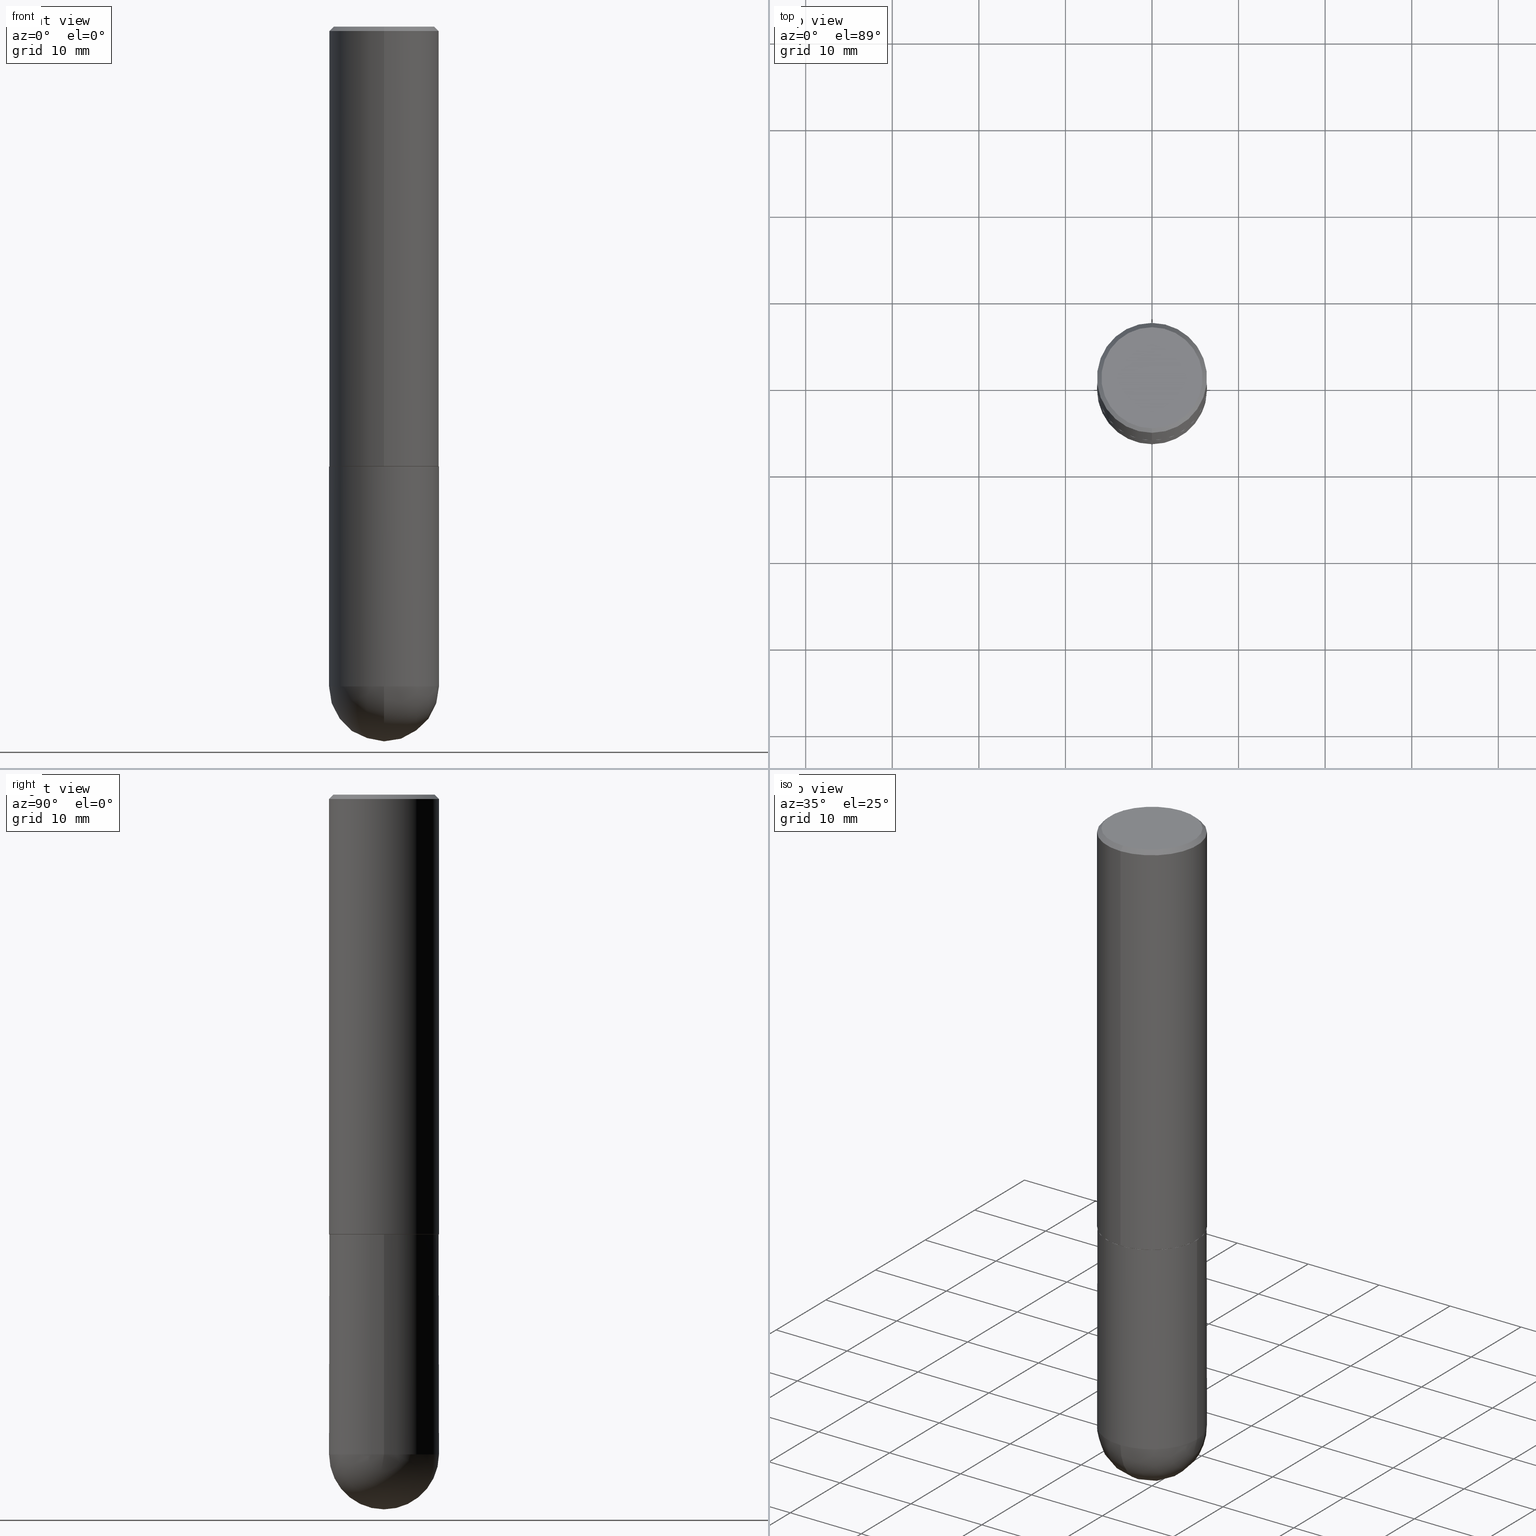
[diagram: canonical four-view strip — front | top / right | iso, engineering-drawing reading convention]
A machine part, canonical four-view strip (front | top / right | iso — engineering-drawing reading convention). The complete STEP part file that produces these views, byte-faithful:
ISO-10303-21;
HEADER;
FILE_DESCRIPTION (( 'STEP AP203' ),
    '1' );
FILE_NAME ('34674.STEP',
    '2024-02-21T18:18:47',
    ( '' ),
    ( '' ),
    'SwSTEP 2.0',
    'SolidWorks 2023',
    '' );
FILE_SCHEMA (( 'CONFIG_CONTROL_DESIGN' ));
ENDSEC;

DATA;
#1 = CARTESIAN_POINT ( 'NONE',  ( 7.005286640641522422E-29, -1.094862638466948349E-14, -2.999999999999999556 ) ) ;
#2 = AXIS2_PLACEMENT_3D ( 'NONE', #1, #65, #62 ) ;
#3 = DIRECTION ( 'NONE',  ( -6.982962677686265133E-15, -1.000000000000000000, 3.291383124896702687E-15 ) ) ;
#4 = CIRCLE ( 'NONE', #123, 0.2500000000000002776 ) ;
#5 = EDGE_CURVE ( 'NONE', #205, #50, #81, .T. ) ;
#6 = CARTESIAN_POINT ( 'NONE',  ( 0.2500000000000000000, -8.728703347107857054E-15, -2.000000000000000000 ) ) ;
#7 = AXIS2_PLACEMENT_3D ( 'NONE', #229, #89, #155 ) ;
#8 = ORIENTED_EDGE ( 'NONE', *, *, #172, .F. ) ;
#9 = EDGE_LOOP ( 'NONE', ( #59, #298, #198, #132 ) ) ;
#10 = PERSON ( 'UNSPECIFIED', 'UNSPECIFIED', 'UNSPECIFIED', ('UNSPECIFIED'), ('UNSPECIFIED'), ('UNSPECIFIED') ) ;
#11 = ORIENTED_EDGE ( 'NONE', *, *, #206, .F. ) ;
#12 = ORIENTED_EDGE ( 'NONE', *, *, #173, .F. ) ;
#13 = EDGE_CURVE ( 'NONE', #232, #205, #275, .T. ) ;
#14 = DIRECTION ( 'NONE',  ( 1.000000000000000000, -6.982962677686265922E-15, 4.883557194083112340E-29 ) ) ;
#15 = DIRECTION ( 'NONE',  ( 5.024295867788576727E-15, 0.7071067811866224018, 0.7071067811864726327 ) ) ;
#16 = SECURITY_CLASSIFICATION_LEVEL ( 'unclassified' ) ;
#17 = DIRECTION ( 'NONE',  ( -6.982962677686265922E-15, -1.000000000000000000, 3.278217592397112312E-15 ) ) ;
#18 = DIRECTION ( 'NONE',  ( -2.446825351752170194E-29, 3.489538688381374705E-15, 1.000000000000000000 ) ) ;
#19 = APPROVAL_DATE_TIME ( #334, #42 ) ;
#20 = CARTESIAN_POINT ( 'NONE',  ( 1.776356839400251254E-15, 0.2500000000000001110, -8.723846720953441693E-16 ) ) ;
#21 = EDGE_CURVE ( 'NONE', #236, #170, #311, .T. ) ;
#22 = CARTESIAN_POINT ( 'NONE',  ( -1.745740669421519346E-15, -0.2500000000000072164, -1.998999999999998778 ) ) ;
#23 = CIRCLE ( 'NONE', #7, 0.2500000000000006661 ) ;
#24 = ORIENTED_EDGE ( 'NONE', *, *, #172, .T. ) ;
#25 = PERSON_AND_ORGANIZATION ( #10, #373 ) ;
#26 = CARTESIAN_POINT ( 'NONE',  ( 1.772804125721499659E-15, 0.2489999999999930325, -2.000000000000000444 ) ) ;
#27 = DIRECTION ( 'NONE',  ( -2.446825351752170194E-29, 3.489538688381374705E-15, 1.000000000000000000 ) ) ;
#28 = EDGE_CURVE ( 'NONE', #163, #354, #260, .T. ) ;
#29 = CLOSED_SHELL ( 'NONE', ( #182, #257, #228, #125, #33, #197, #364, #37 ) ) ;
#30 = APPROVAL_STATUS ( 'not_yet_approved' ) ;
#31 = CALENDAR_DATE ( 2024, 21, 2 ) ;
#32 = CARTESIAN_POINT ( 'NONE',  ( 4.893650703504352860E-31, -6.979077376762769329E-17, -0.02000000000000005593 ) ) ;
#33 = ADVANCED_FACE ( 'NONE', ( #374 ), #86, .T. ) ;
#34 = CIRCLE ( 'NONE', #202, 0.2500000000000000000 ) ;
#35 = DIRECTION ( 'NONE',  ( -2.446825351752170194E-29, 3.489538688381374705E-15, 1.000000000000000000 ) ) ;
#36 = AXIS2_PLACEMENT_3D ( 'NONE', #213, #242, #17 ) ;
#37 = ADVANCED_FACE ( 'NONE', ( #406 ), #149, .F. ) ;
#38 = ORIENTED_EDGE ( 'NONE', *, *, #199, .F. ) ;
#39 = DIRECTION ( 'NONE',  ( 1.000000000000000000, 0.000000000000000000, 0.000000000000000000 ) ) ;
#40 = EDGE_LOOP ( 'NONE', ( #8, #324, #201, #203 ) ) ;
#41 = EDGE_LOOP ( 'NONE', ( #102, #224, #100, #96, #235 ) ) ;
#42 = APPROVAL ( #241, 'UNSPECIFIED' ) ;
#43 = ORIENTED_EDGE ( 'NONE', *, *, #225, .F. ) ;
#44 = EDGE_CURVE ( 'NONE', #205, #328, #4, .T. ) ;
#45 = EDGE_LOOP ( 'NONE', ( #38, #395, #387, #128, #43 ) ) ;
#46 = CC_DESIGN_SECURITY_CLASSIFICATION ( #299, ( #55 ) ) ;
#47 = PERSON_AND_ORGANIZATION ( #10, #373 ) ;
#48 = DIRECTION ( 'NONE',  ( 2.446825351752169914E-29, -3.489538688381374705E-15, -1.000000000000000000 ) ) ;
#49 = CARTESIAN_POINT ( 'NONE',  ( 4.893650703504339267E-29, -6.979077376762749410E-15, -1.999999999999999778 ) ) ;
#50 = VERTEX_POINT ( 'NONE', #249 ) ;
#51 = DIRECTION ( 'NONE',  ( -6.982962677686265133E-15, -1.000000000000000000, 3.291383124896702687E-15 ) ) ;
#52 = PERSON_AND_ORGANIZATION ( #10, #373 ) ;
#53 = FACE_OUTER_BOUND ( 'NONE', #45, .T. ) ;
#54 = VECTOR ( 'NONE', #399, 39.37007874015748143 ) ;
#55 = PRODUCT_DEFINITION_FORMATION_WITH_SPECIFIED_SOURCE ( 'ANY', '', #129, .NOT_KNOWN. ) ;
#56 = PERSON_AND_ORGANIZATION ( #10, #373 ) ;
#57 = DIRECTION ( 'NONE',  ( 6.982962677686265922E-15, 1.000000000000000000, -3.483106191921935554E-15 ) ) ;
#58 = DIRECTION ( 'NONE',  ( -6.982962677686265133E-15, -1.000000000000000000, 3.291383124896702687E-15 ) ) ;
#59 = ORIENTED_EDGE ( 'NONE', *, *, #352, .F. ) ;
#60 = DIRECTION ( 'NONE',  ( 1.000000000000000000, -6.982962677686270655E-15, 0.000000000000000000 ) ) ;
#61 = EDGE_CURVE ( 'NONE', #328, #170, #211, .T. ) ;
#62 = DIRECTION ( 'NONE',  ( 6.982962677686265922E-15, 1.000000000000000000, -4.370956789862809317E-15 ) ) ;
#63 = EDGE_LOOP ( 'NONE', ( #130, #69, #11, #240 ) ) ;
#64 = SPHERICAL_SURFACE ( 'NONE', #2, 0.2500000000000006661 ) ;
#65 = DIRECTION ( 'NONE',  ( -1.000000000000000000, 6.982962677686265922E-15, -4.883557194083112340E-29 ) ) ;
#66 = CC_DESIGN_APPROVAL ( #136, ( #55 ) ) ;
#67 = ORIENTED_EDGE ( 'NONE', *, *, #21, .T. ) ;
#68 = EDGE_CURVE ( 'NONE', #321, #126, #72, .T. ) ;
#69 = ORIENTED_EDGE ( 'NONE', *, *, #61, .T. ) ;
#70 = VECTOR ( 'NONE', #246, 39.37007874015748143 ) ;
#71 = ORIENTED_EDGE ( 'NONE', *, *, #28, .F. ) ;
#72 = CIRCLE ( 'NONE', #264, 0.2500000000000000000 ) ;
#73 = ORIENTED_EDGE ( 'NONE', *, *, #292, .F. ) ;
#74 = ORIENTED_EDGE ( 'NONE', *, *, #192, .F. ) ;
#75 = MANIFOLD_SOLID_BREP ( 'Body-Move/Copy2[2]', #29 ) ;
#76 = CALENDAR_DATE ( 2024, 21, 2 ) ;
#77 = DIRECTION ( 'NONE',  ( -2.445468806185136597E-29, 3.491481338843145583E-15, 1.000000000000000000 ) ) ;
#78 = CIRCLE ( 'NONE', #271, 0.2500000000000000000 ) ;
#79 = DIRECTION ( 'NONE',  ( -2.445468806185136597E-29, 3.491481338843145583E-15, 1.000000000000000000 ) ) ;
#80 = AXIS2_PLACEMENT_3D ( 'NONE', #409, #116, #58 ) ;
#81 = LINE ( 'NONE', #217, #375 ) ;
#82 = DIRECTION ( 'NONE',  ( 1.000000000000000000, -6.982962677686266711E-15, 4.876176775795935793E-29 ) ) ;
#83 = CYLINDRICAL_SURFACE ( 'NONE', #392, 0.2500000000000000000 ) ;
#84 = FACE_OUTER_BOUND ( 'NONE', #356, .T. ) ;
#85 = CIRCLE ( 'NONE', #107, 0.2500000000000000000 ) ;
#86 = CYLINDRICAL_SURFACE ( 'NONE', #135, 0.2500000000000001110 ) ;
#87 = CARTESIAN_POINT ( 'NONE',  ( 4.893650703504352860E-31, -6.979077376762769329E-17, -0.02000000000000005593 ) ) ;
#88 = ADVANCED_FACE ( 'NONE', ( #303 ), #139, .T. ) ;
#89 = DIRECTION ( 'NONE',  ( -1.000000000000000000, 7.105427357601001070E-15, -4.926315508542082329E-29 ) ) ;
#90 = CARTESIAN_POINT ( 'NONE',  ( 7.627343420802550890E-29, -1.180618863439093125E-14, -3.250000000000000444 ) ) ;
#91 = AXIS2_PLACEMENT_3D ( 'NONE', #243, #144, #398 ) ;
#92 =( LENGTH_UNIT ( ) NAMED_UNIT ( * ) SI_UNIT ( $, .METRE. ) );
#93 = CC_DESIGN_DATE_AND_TIME_ASSIGNMENT ( #208, #304, ( #194 ) ) ;
#94 = DIRECTION ( 'NONE',  ( 2.438088387897960049E-29, -3.491481338843145188E-15, -1.000000000000000000 ) ) ;
#95 = ORIENTED_EDGE ( 'NONE', *, *, #97, .T. ) ;
#96 = ORIENTED_EDGE ( 'NONE', *, *, #381, .F. ) ;
#97 = EDGE_CURVE ( 'NONE', #328, #205, #220, .T. ) ;
#98 = DIRECTION ( 'NONE',  ( 0.000000000000000000, 0.000000000000000000, 1.000000000000000000 ) ) ;
#99 = ORIENTED_EDGE ( 'NONE', *, *, #13, .F. ) ;
#100 = ORIENTED_EDGE ( 'NONE', *, *, #68, .F. ) ;
#101 = VECTOR ( 'NONE', #313, 39.37007874015748143 ) ;
#102 = ORIENTED_EDGE ( 'NONE', *, *, #28, .T. ) ;
#103 = VERTEX_POINT ( 'NONE', #337 ) ;
#104 = VERTEX_POINT ( 'NONE', #26 ) ;
#105 = CARTESIAN_POINT ( 'NONE',  ( -1.738757706743831162E-15, -0.2490000000000069658, -1.999999999999998890 ) ) ;
#106 = DIRECTION ( 'NONE',  ( 6.982962677686265922E-15, 1.000000000000000000, -3.489538688381374705E-15 ) ) ;
#107 = AXIS2_PLACEMENT_3D ( 'NONE', #32, #121, #318 ) ;
#108 = DIRECTION ( 'NONE',  ( -2.446825351752170194E-29, 3.489538688381374705E-15, 1.000000000000000000 ) ) ;
#109 = CARTESIAN_POINT ( 'NONE',  ( 0.000000000000000000, 0.000000000000000000, 0.000000000000000000 ) ) ;
#110 = PERSON_AND_ORGANIZATION_ROLE ( 'creator' ) ;
#111 = CARTESIAN_POINT ( 'NONE',  ( 4.891203878152586770E-29, -6.975587838074367466E-15, -1.998999999999999666 ) ) ;
#112 = DIRECTION ( 'NONE',  ( 1.000000000000000000, -6.982962677686266711E-15, 0.000000000000000000 ) ) ;
#113 = ADVANCED_FACE ( 'NONE', ( #53 ), #83, .T. ) ;
#114 = CALENDAR_DATE ( 2024, 21, 2 ) ;
#115 = ORIENTED_EDGE ( 'NONE', *, *, #297, .T. ) ;
#116 = DIRECTION ( 'NONE',  ( -2.446825351752170194E-29, 3.489538688381374705E-15, 1.000000000000000000 ) ) ;
#117 = LOCAL_TIME ( 13, 18, 47.00000000000000000, #314 ) ;
#118 = FACE_OUTER_BOUND ( 'NONE', #9, .T. ) ;
#119 = PERSON_AND_ORGANIZATION ( #10, #373 ) ;
#120 = SHAPE_DEFINITION_REPRESENTATION ( #131, #267 ) ;
#121 = DIRECTION ( 'NONE',  ( -2.446825351752170194E-29, 3.489538688381374705E-15, 1.000000000000000000 ) ) ;
#122 =( GEOMETRIC_REPRESENTATION_CONTEXT ( 3 ) GLOBAL_UNCERTAINTY_ASSIGNED_CONTEXT ( ( #200 ) ) GLOBAL_UNIT_ASSIGNED_CONTEXT ( ( #261, #380, #151 ) ) REPRESENTATION_CONTEXT ( 'NONE', 'WORKASPACE' ) );
#123 = AXIS2_PLACEMENT_3D ( 'NONE', #111, #343, #137 ) ;
#124 = CARTESIAN_POINT ( 'NONE',  ( 1.745740669421615390E-15, 0.2499999999999930334, -2.000000000000000888 ) ) ;
#125 = ADVANCED_FACE ( 'NONE', ( #187 ), #353, .T. ) ;
#126 = VERTEX_POINT ( 'NONE', #185 ) ;
#127 = AXIS2_PLACEMENT_3D ( 'NONE', #306, #18, #148 ) ;
#128 = ORIENTED_EDGE ( 'NONE', *, *, #381, .T. ) ;
#129 = PRODUCT ( '34674', '34674', '', ( #238 ) ) ;
#130 = ORIENTED_EDGE ( 'NONE', *, *, #44, .T. ) ;
#131 = PRODUCT_DEFINITION_SHAPE ( 'NONE', 'NONE',  #194 ) ;
#132 = ORIENTED_EDGE ( 'NONE', *, *, #370, .F. ) ;
#133 = AXIS2_PLACEMENT_3D ( 'NONE', #258, #35, #256 ) ;
#134 = ORIENTED_EDGE ( 'NONE', *, *, #366, .T. ) ;
#135 = AXIS2_PLACEMENT_3D ( 'NONE', #177, #305, #332 ) ;
#136 = APPROVAL ( #308, 'UNSPECIFIED' ) ;
#137 = DIRECTION ( 'NONE',  ( -6.982962677686265922E-15, -1.000000000000000000, 3.278217592397112312E-15 ) ) ;
#138 = CARTESIAN_POINT ( 'NONE',  ( 7.336406418555408669E-29, -1.047444401652943478E-14, -2.999999999999999556 ) ) ;
#139 = CYLINDRICAL_SURFACE ( 'NONE', #157, 0.2500000000000000000 ) ;
#140 = CARTESIAN_POINT ( 'NONE',  ( -1.715124499442882299E-15, -0.2500000000000000555, -0.01999999999999918510 ) ) ;
#141 = COORDINATED_UNIVERSAL_TIME_OFFSET ( 5, 0, .BEHIND. ) ;
#142 = DIRECTION ( 'NONE',  ( -2.445468806185136597E-29, 3.491481338843145583E-15, 1.000000000000000000 ) ) ;
#143 = AXIS2_PLACEMENT_3D ( 'NONE', #376, #171, #301 ) ;
#144 = DIRECTION ( 'NONE',  ( -2.445468806185136597E-29, 3.491481338843145583E-15, 1.000000000000000000 ) ) ;
#145 = AXIS2_PLACEMENT_3D ( 'NONE', #281, #108, #312 ) ;
#146 = PERSON_AND_ORGANIZATION ( #10, #373 ) ;
#147 = EDGE_LOOP ( 'NONE', ( #389, #24, #263, #99 ) ) ;
#148 = DIRECTION ( 'NONE',  ( -6.982962677686265133E-15, -1.000000000000000000, 3.291383124896702687E-15 ) ) ;
#149 = PLANE ( 'NONE',  #165 ) ;
#150 = FACE_OUTER_BOUND ( 'NONE', #63, .T. ) ;
#151 =( NAMED_UNIT ( * ) SI_UNIT ( $, .STERADIAN. ) SOLID_ANGLE_UNIT ( ) );
#152 = APPROVAL_DATE_TIME ( #377, #234 ) ;
#153 = DESIGN_CONTEXT ( 'detailed design', #251, 'design' ) ;
#154 = DIRECTION ( 'NONE',  ( -1.000000000000000000, 6.982962677686265922E-15, -4.883557194083112340E-29 ) ) ;
#155 = DIRECTION ( 'NONE',  ( -7.105427357601001859E-15, -1.000000000000000000, 0.000000000000000000 ) ) ;
#156 = APPLICATION_CONTEXT ( 'configuration controlled 3d designs of mechanical parts and assemblies' ) ;
#157 = AXIS2_PLACEMENT_3D ( 'NONE', #109, #142, #82 ) ;
#158 = AXIS2_PLACEMENT_3D ( 'NONE', #124, #94, #226 ) ;
#159 = AXIS2_PLACEMENT_3D ( 'NONE', #283, #408, #57 ) ;
#160 = DATE_AND_TIME ( #31, #117 ) ;
#161 = EDGE_CURVE ( 'NONE', #300, #163, #216, .T. ) ;
#162 = CARTESIAN_POINT ( 'NONE',  ( 0.000000000000000000, 0.000000000000000000, 0.000000000000000000 ) ) ;
#163 = VERTEX_POINT ( 'NONE', #397 ) ;
#164 = CC_DESIGN_APPROVAL ( #234, ( #299 ) ) ;
#165 = AXIS2_PLACEMENT_3D ( 'NONE', #221, #48, #106 ) ;
#166 = ORIENTED_EDGE ( 'NONE', *, *, #292, .T. ) ;
#167 = ORIENTED_EDGE ( 'NONE', *, *, #384, .F. ) ;
#168 = EDGE_LOOP ( 'NONE', ( #269, #204, #296, #71 ) ) ;
#169 = AXIS2_PLACEMENT_3D ( 'NONE', #189, #154, #347 ) ;
#170 = VERTEX_POINT ( 'NONE', #390 ) ;
#171 = DIRECTION ( 'NONE',  ( -2.446825351752170194E-29, 3.489538688381374705E-15, 1.000000000000000000 ) ) ;
#172 = EDGE_CURVE ( 'NONE', #104, #328, #403, .T. ) ;
#173 = EDGE_CURVE ( 'NONE', #104, #232, #394, .T. ) ;
#174 = DIRECTION ( 'NONE',  ( -2.446825351752170474E-29, 3.489538688381374705E-15, 1.000000000000000000 ) ) ;
#175 = DIRECTION ( 'NONE',  ( 2.446825351752170194E-29, -3.489538688381374705E-15, -1.000000000000000000 ) ) ;
#176 = PERSON_AND_ORGANIZATION_ROLE ( 'creator' ) ;
#177 = CARTESIAN_POINT ( 'NONE',  ( 0.000000000000000000, 0.000000000000000000, 0.000000000000000000 ) ) ;
#178 = CARTESIAN_POINT ( 'NONE',  ( -0.2500000000000000000, 1.776356839400250465E-15, -1.229733772563726445E-29 ) ) ;
#179 = APPROVAL_ROLE ( '' ) ;
#180 = CARTESIAN_POINT ( 'NONE',  ( 0.000000000000000000, 0.000000000000000000, 0.000000000000000000 ) ) ;
#181 = LOCAL_TIME ( 13, 18, 47.00000000000000000, #215 ) ;
#182 = ADVANCED_FACE ( 'NONE', ( #183 ), #191, .T. ) ;
#183 = FACE_OUTER_BOUND ( 'NONE', #147, .T. ) ;
#184 = PERSON_AND_ORGANIZATION ( #10, #373 ) ;
#185 = CARTESIAN_POINT ( 'NONE',  ( -0.2500000000000000000, -6.952346507707612900E-15, -2.000000000000000000 ) ) ;
#186 = FACE_OUTER_BOUND ( 'NONE', #40, .T. ) ;
#187 = FACE_OUTER_BOUND ( 'NONE', #277, .T. ) ;
#188 = CARTESIAN_POINT ( 'NONE',  ( 0.2500000000000000000, -1.745740669421566678E-15, 1.219044193948983948E-29 ) ) ;
#189 = CARTESIAN_POINT ( 'NONE',  ( 7.005286640641522422E-29, -1.094862638466948349E-14, -2.999999999999999556 ) ) ;
#190 = CONICAL_SURFACE ( 'NONE', #218, 0.2489999999999999991, 0.7853981633975507526 ) ;
#191 = CONICAL_SURFACE ( 'NONE', #127, 0.2489999999999999991, 0.7853981633975507526 ) ;
#192 = EDGE_CURVE ( 'NONE', #103, #236, #315, .T. ) ;
#193 = CARTESIAN_POINT ( 'NONE',  ( 1.776356839400276497E-15, 0.2499999999999933109, -1.999000000000000554 ) ) ;
#194 = PRODUCT_DEFINITION ( 'UNKNOWN', '', #55, #153 ) ;
#195 = CARTESIAN_POINT ( 'NONE',  ( -0.2500000000000000000, -6.952346507707614478E-15, -2.999999999999999556 ) ) ;
#196 = PLANE ( 'NONE',  #158 ) ;
#197 = ADVANCED_FACE ( 'NONE', ( #186 ), #190, .T. ) ;
#198 = ORIENTED_EDGE ( 'NONE', *, *, #284, .F. ) ;
#199 = EDGE_CURVE ( 'NONE', #354, #126, #368, .T. ) ;
#200 = UNCERTAINTY_MEASURE_WITH_UNIT (LENGTH_MEASURE( 1.000000000000000082E-05 ), #261, 'distance_accuracy_value', 'NONE');
#201 = ORIENTED_EDGE ( 'NONE', *, *, #13, .T. ) ;
#202 = AXIS2_PLACEMENT_3D ( 'NONE', #279, #27, #372 ) ;
#203 = ORIENTED_EDGE ( 'NONE', *, *, #97, .F. ) ;
#204 = ORIENTED_EDGE ( 'NONE', *, *, #352, .T. ) ;
#205 = VERTEX_POINT ( 'NONE', #22 ) ;
#206 = EDGE_CURVE ( 'NONE', #50, #170, #34, .T. ) ;
#207 = EDGE_CURVE ( 'NONE', #354, #391, #237, .T. ) ;
#208 = DATE_AND_TIME ( #302, #181 ) ;
#209 = DIRECTION ( 'NONE',  ( -4.937700262165053702E-15, -0.7071067811866175168, 0.7071067811864775177 ) ) ;
#210 = DIRECTION ( 'NONE',  ( 1.000000000000000000, -6.982962677686270655E-15, 0.000000000000000000 ) ) ;
#211 = LINE ( 'NONE', #20, #401 ) ;
#212 = CARTESIAN_POINT ( 'NONE',  ( 1.769251412042698169E-15, 0.2489999999999930325, -2.000000000000000444 ) ) ;
#213 = CARTESIAN_POINT ( 'NONE',  ( 4.891203878152586770E-29, -6.975587838074367466E-15, -1.998999999999999666 ) ) ;
#214 = CARTESIAN_POINT ( 'NONE',  ( 4.890937612370273194E-29, -6.982962677686291165E-15, -2.000000000000000000 ) ) ;
#215 = COORDINATED_UNIVERSAL_TIME_OFFSET ( 5, 0, .BEHIND. ) ;
#216 = CIRCLE ( 'NONE', #325, 0.2500000000000006661 ) ;
#217 = CARTESIAN_POINT ( 'NONE',  ( -1.745740669421567467E-15, -0.2500000000000001110, 8.723846720953441693E-16 ) ) ;
#218 = AXIS2_PLACEMENT_3D ( 'NONE', #49, #222, #51 ) ;
#219 = DIRECTION ( 'NONE',  ( 6.982962677686265922E-15, 1.000000000000000000, -3.483106191921935554E-15 ) ) ;
#220 = CIRCLE ( 'NONE', #36, 0.2500000000000002776 ) ;
#221 = CARTESIAN_POINT ( 'NONE',  ( 1.606081415867843237E-15, 0.2300000000000002875, -9.650207777546365185E-16 ) ) ;
#222 = DIRECTION ( 'NONE',  ( -2.446825351752170194E-29, 3.489538688381374705E-15, 1.000000000000000000 ) ) ;
#223 = DIRECTION ( 'NONE',  ( -2.445468806185136597E-29, 3.491481338843145583E-15, 1.000000000000000000 ) ) ;
#224 = ORIENTED_EDGE ( 'NONE', *, *, #199, .T. ) ;
#225 = EDGE_CURVE ( 'NONE', #126, #321, #276, .T. ) ;
#226 = DIRECTION ( 'NONE',  ( -1.000000000000000000, 6.982962677686265922E-15, -4.876176775795935793E-29 ) ) ;
#227 = LENGTH_MEASURE_WITH_UNIT ( LENGTH_MEASURE( 0.02539999999999999897 ), #92 );
#228 = ADVANCED_FACE ( 'NONE', ( #84 ), #330, .T. ) ;
#229 = CARTESIAN_POINT ( 'NONE',  ( 7.005286640641522422E-29, -1.094862638466948349E-14, -2.999999999999999556 ) ) ;
#230 = FACE_OUTER_BOUND ( 'NONE', #358, .T. ) ;
#231 = LOCAL_TIME ( 13, 18, 47.00000000000000000, #412 ) ;
#232 = VERTEX_POINT ( 'NONE', #105 ) ;
#233 = DIMENSIONAL_EXPONENTS ( 1.000000000000000000, 0.000000000000000000, 0.000000000000000000, 0.000000000000000000, 0.000000000000000000, 0.000000000000000000, 0.000000000000000000 ) ;
#234 = APPROVAL ( #30, 'UNSPECIFIED' ) ;
#235 = ORIENTED_EDGE ( 'NONE', *, *, #284, .T. ) ;
#236 = VERTEX_POINT ( 'NONE', #344 ) ;
#237 = CIRCLE ( 'NONE', #91, 0.2500000000000000000 ) ;
#238 = MECHANICAL_CONTEXT ( 'NONE', #156, 'mechanical' ) ;
#239 = ORIENTED_EDGE ( 'NONE', *, *, #225, .T. ) ;
#240 = ORIENTED_EDGE ( 'NONE', *, *, #5, .F. ) ;
#241 = APPROVAL_STATUS ( 'not_yet_approved' ) ;
#242 = DIRECTION ( 'NONE',  ( -2.446825351752170194E-29, 3.489538688381374705E-15, 1.000000000000000000 ) ) ;
#243 = CARTESIAN_POINT ( 'NONE',  ( 7.336406418555408669E-29, -1.047444401652943478E-14, -2.999999999999999556 ) ) ;
#244 = AXIS2_PLACEMENT_3D ( 'NONE', #349, #345, #3 ) ;
#245 = DIRECTION ( 'NONE',  ( 1.000000000000000000, -6.982962677686266711E-15, 0.000000000000000000 ) ) ;
#246 = DIRECTION ( 'NONE',  ( -4.851104656540961908E-15, -0.7071067811865496822, -0.7071067811865453523 ) ) ;
#247 = CALENDAR_DATE ( 2024, 21, 2 ) ;
#248 = DIRECTION ( 'NONE',  ( 1.000000000000000000, -6.982962677686270655E-15, 0.000000000000000000 ) ) ;
#249 = CARTESIAN_POINT ( 'NONE',  ( -1.715124499442882299E-15, -0.2500000000000000555, -0.01999999999999918510 ) ) ;
#250 = DIRECTION ( 'NONE',  ( -2.445468806185136597E-29, 3.491481338843145583E-15, 1.000000000000000000 ) ) ;
#251 = APPLICATION_CONTEXT ( 'configuration controlled 3d designs of mechanical parts and assemblies' ) ;
#252 = PERSON_AND_ORGANIZATION_ROLE ( 'classification_officer' ) ;
#253 = APPROVAL_PERSON_ORGANIZATION ( #52, #42, #179 ) ;
#254 = CARTESIAN_POINT ( 'NONE',  ( 1.745740669421566875E-15, 0.2499999999999999167, -0.02000000000000092676 ) ) ;
#255 = DATE_TIME_ROLE ( 'classification_date' ) ;
#256 = DIRECTION ( 'NONE',  ( -6.982962677686265922E-15, -1.000000000000000000, 3.489538688381374705E-15 ) ) ;
#257 = ADVANCED_FACE ( 'NONE', ( #150 ), #363, .T. ) ;
#258 = CARTESIAN_POINT ( 'NONE',  ( 7.948604127755579372E-45, -1.133589759586583103E-30, -3.248537588538385073E-16 ) ) ;
#259 = CARTESIAN_POINT ( 'NONE',  ( -1.776356839400180848E-15, -0.2500000000000110467, -2.999999999999998668 ) ) ;
#260 = CIRCLE ( 'NONE', #287, 0.2500000000000000000 ) ;
#261 =( CONVERSION_BASED_UNIT ( 'INCH', #227 ) LENGTH_UNIT ( ) NAMED_UNIT ( #233 ) );
#262 = FACE_OUTER_BOUND ( 'NONE', #265, .T. ) ;
#263 = ORIENTED_EDGE ( 'NONE', *, *, #44, .F. ) ;
#264 = AXIS2_PLACEMENT_3D ( 'NONE', #371, #77, #245 ) ;
#265 = EDGE_LOOP ( 'NONE', ( #355, #239 ) ) ;
#266 = ORIENTED_EDGE ( 'NONE', *, *, #192, .T. ) ;
#267 = ADVANCED_BREP_SHAPE_REPRESENTATION ( '34674', ( #360, #75, #294 ), #122 ) ;
#268 = APPLICATION_PROTOCOL_DEFINITION ( 'international standard', 'config_control_design', 1994, #156 ) ;
#269 = ORIENTED_EDGE ( 'NONE', *, *, #161, .F. ) ;
#270 = VECTOR ( 'NONE', #407, 39.37007874015748143 ) ;
#271 = AXIS2_PLACEMENT_3D ( 'NONE', #320, #223, #60 ) ;
#272 = ORIENTED_EDGE ( 'NONE', *, *, #61, .F. ) ;
#273 = PERSON_AND_ORGANIZATION ( #10, #373 ) ;
#274 = DIRECTION ( 'NONE',  ( 6.982962677686266711E-15, 1.000000000000000000, 0.000000000000000000 ) ) ;
#275 = LINE ( 'NONE', #280, #278 ) ;
#276 = CIRCLE ( 'NONE', #365, 0.2500000000000000000 ) ;
#277 = EDGE_LOOP ( 'NONE', ( #73, #335, #67, #134 ) ) ;
#278 = VECTOR ( 'NONE', #209, 39.37007874015748143 ) ;
#279 = CARTESIAN_POINT ( 'NONE',  ( 4.893650703504352860E-31, -6.979077376762769329E-17, -0.02000000000000005593 ) ) ;
#280 = CARTESIAN_POINT ( 'NONE',  ( -1.738757706743831162E-15, -0.2490000000000069658, -1.999999999999998890 ) ) ;
#281 = CARTESIAN_POINT ( 'NONE',  ( 7.948604127755579372E-45, -1.133589759586583103E-30, -3.248537588538385073E-16 ) ) ;
#282 = CC_DESIGN_DATE_AND_TIME_ASSIGNMENT ( #160, #255, ( #299 ) ) ;
#283 = CARTESIAN_POINT ( 'NONE',  ( 4.893650703504352860E-31, -6.979077376762769329E-17, -0.02000000000000005593 ) ) ;
#284 = EDGE_CURVE ( 'NONE', #295, #163, #350, .T. ) ;
#285 = LINE ( 'NONE', #188, #101 ) ;
#286 = PRODUCT_RELATED_PRODUCT_CATEGORY ( 'detail', '', ( #129 ) ) ;
#287 = AXIS2_PLACEMENT_3D ( 'NONE', #367, #402, #248 ) ;
#288 = DIRECTION ( 'NONE',  ( -2.446825351752169914E-29, 3.489538688381374705E-15, 1.000000000000000000 ) ) ;
#289 = CIRCLE ( 'NONE', #133, 0.2300000000000002875 ) ;
#290 = APPROVAL_ROLE ( '' ) ;
#291 = CARTESIAN_POINT ( 'NONE',  ( 0.2500000000000000000, -1.047444401652943162E-14, -2.999999999999999556 ) ) ;
#292 = EDGE_CURVE ( 'NONE', #103, #50, #333, .T. ) ;
#293 = ORIENTED_EDGE ( 'NONE', *, *, #206, .T. ) ;
#294 = AXIS2_PLACEMENT_3D ( 'NONE', #162, #98, #39 ) ;
#295 = VERTEX_POINT ( 'NONE', #291 ) ;
#296 = ORIENTED_EDGE ( 'NONE', *, *, #207, .F. ) ;
#297 = EDGE_CURVE ( 'NONE', #236, #103, #289, .T. ) ;
#298 = ORIENTED_EDGE ( 'NONE', *, *, #161, .T. ) ;
#299 = SECURITY_CLASSIFICATION ( '', '', #16 ) ;
#300 = VERTEX_POINT ( 'NONE', #90 ) ;
#301 = DIRECTION ( 'NONE',  ( -6.982962677686266711E-15, -1.000000000000000000, 3.489538688381375099E-15 ) ) ;
#302 = CALENDAR_DATE ( 2024, 21, 2 ) ;
#303 = FACE_OUTER_BOUND ( 'NONE', #41, .T. ) ;
#304 = DATE_TIME_ROLE ( 'creation_date' ) ;
#305 = DIRECTION ( 'NONE',  ( -2.446825351752170194E-29, 3.489538688381374705E-15, 1.000000000000000000 ) ) ;
#306 = CARTESIAN_POINT ( 'NONE',  ( 4.893650703504339267E-29, -6.979077376762749410E-15, -1.999999999999999778 ) ) ;
#307 = CIRCLE ( 'NONE', #244, 0.2489999999999999991 ) ;
#308 = APPROVAL_STATUS ( 'not_yet_approved' ) ;
#309 = DIRECTION ( 'NONE',  ( -2.445468806185136597E-29, 3.491481338843145583E-15, 1.000000000000000000 ) ) ;
#310 = APPROVAL_ROLE ( '' ) ;
#311 = LINE ( 'NONE', #254, #54 ) ;
#312 = DIRECTION ( 'NONE',  ( -6.982962677686265922E-15, -1.000000000000000000, 3.489538688381374705E-15 ) ) ;
#313 = DIRECTION ( 'NONE',  ( -2.445468806185136877E-29, 3.491481338843145188E-15, 1.000000000000000000 ) ) ;
#314 = COORDINATED_UNIVERSAL_TIME_OFFSET ( 5, 0, .BEHIND. ) ;
#315 = CIRCLE ( 'NONE', #145, 0.2300000000000002875 ) ;
#316 = CC_DESIGN_PERSON_AND_ORGANIZATION_ASSIGNMENT ( #146, #176, ( #194 ) ) ;
#317 = CARTESIAN_POINT ( 'NONE',  ( 4.893650703504339828E-29, -6.979077376762750199E-15, -2.000000000000000000 ) ) ;
#318 = DIRECTION ( 'NONE',  ( -6.982962677686265922E-15, -1.000000000000000000, 3.483106191921935554E-15 ) ) ;
#319 = AXIS2_PLACEMENT_3D ( 'NONE', #317, #288, #378 ) ;
#320 = CARTESIAN_POINT ( 'NONE',  ( 7.336406418555408669E-29, -1.047444401652943478E-14, -2.999999999999999556 ) ) ;
#321 = VERTEX_POINT ( 'NONE', #6 ) ;
#322 = ADVANCED_FACE ( 'NONE', ( #385 ), #348, .T. ) ;
#323 = EDGE_LOOP ( 'NONE', ( #272, #95, #329, #327 ) ) ;
#324 = ORIENTED_EDGE ( 'NONE', *, *, #173, .T. ) ;
#325 = AXIS2_PLACEMENT_3D ( 'NONE', #362, #14, #274 ) ;
#326 = ADVANCED_FACE ( 'NONE', ( #262 ), #196, .F. ) ;
#327 = ORIENTED_EDGE ( 'NONE', *, *, #366, .F. ) ;
#328 = VERTEX_POINT ( 'NONE', #193 ) ;
#329 = ORIENTED_EDGE ( 'NONE', *, *, #5, .T. ) ;
#330 = CONICAL_SURFACE ( 'NONE', #410, 0.2500000000000000000, 0.7853981633974479459 ) ;
#331 = APPROVAL_DATE_TIME ( #405, #136 ) ;
#332 = DIRECTION ( 'NONE',  ( -6.982962677686266711E-15, -1.000000000000000000, 3.489538688381375099E-15 ) ) ;
#333 = LINE ( 'NONE', #140, #70 ) ;
#334 = DATE_AND_TIME ( #76, #357 ) ;
#335 = ORIENTED_EDGE ( 'NONE', *, *, #297, .F. ) ;
#336 = PERSON_AND_ORGANIZATION_ROLE ( 'design_owner' ) ;
#337 = CARTESIAN_POINT ( 'NONE',  ( -1.646519519465167954E-15, -0.2300000000000002875, 4.777401394738787083E-16 ) ) ;
#338 = CLOSED_SHELL ( 'NONE', ( #88, #322, #351, #326, #113 ) ) ;
#339 = APPROVAL_PERSON_ORGANIZATION ( #184, #136, #310 ) ;
#340 = PERSON_AND_ORGANIZATION_ROLE ( 'design_supplier' ) ;
#341 = DIRECTION ( 'NONE',  ( 1.000000000000000000, -6.982962677686266711E-15, 4.876176775795935793E-29 ) ) ;
#342 = VECTOR ( 'NONE', #15, 39.37007874015748143 ) ;
#343 = DIRECTION ( 'NONE',  ( -2.446825351752170194E-29, 3.489538688381374705E-15, 1.000000000000000000 ) ) ;
#344 = CARTESIAN_POINT ( 'NONE',  ( 1.675911042644705154E-15, 0.2300000000000002875, -1.127447657181555624E-15 ) ) ;
#345 = DIRECTION ( 'NONE',  ( -2.446825351752170194E-29, 3.489538688381374705E-15, 1.000000000000000000 ) ) ;
#346 = LOCAL_TIME ( 13, 18, 47.00000000000000000, #141 ) ;
#347 = DIRECTION ( 'NONE',  ( 6.982962677686265922E-15, 1.000000000000000000, -4.370956789862809317E-15 ) ) ;
#348 = SPHERICAL_SURFACE ( 'NONE', #169, 0.2500000000000006661 ) ;
#349 = CARTESIAN_POINT ( 'NONE',  ( 4.893650703504339267E-29, -6.979077376762749410E-15, -1.999999999999999778 ) ) ;
#350 = CIRCLE ( 'NONE', #393, 0.2500000000000000000 ) ;
#351 = ADVANCED_FACE ( 'NONE', ( #118 ), #64, .T. ) ;
#352 = EDGE_CURVE ( 'NONE', #300, #391, #23, .T. ) ;
#353 = CONICAL_SURFACE ( 'NONE', #159, 0.2500000000000000000, 0.7853981633974479459 ) ;
#354 = VERTEX_POINT ( 'NONE', #195 ) ;
#355 = ORIENTED_EDGE ( 'NONE', *, *, #68, .T. ) ;
#356 = EDGE_LOOP ( 'NONE', ( #74, #166, #293, #386 ) ) ;
#357 = LOCAL_TIME ( 13, 18, 47.00000000000000000, #361 ) ;
#358 = EDGE_LOOP ( 'NONE', ( #167, #12 ) ) ;
#359 = EDGE_LOOP ( 'NONE', ( #115, #266 ) ) ;
#360 = MANIFOLD_SOLID_BREP ( 'Body-Move/Copy2[1]', #338 ) ;
#361 = COORDINATED_UNIVERSAL_TIME_OFFSET ( 5, 0, .BEHIND. ) ;
#362 = CARTESIAN_POINT ( 'NONE',  ( 7.005286640641522422E-29, -1.094862638466948349E-14, -2.999999999999999556 ) ) ;
#363 = CYLINDRICAL_SURFACE ( 'NONE', #143, 0.2500000000000001110 ) ;
#364 = ADVANCED_FACE ( 'NONE', ( #230 ), #383, .F. ) ;
#365 = AXIS2_PLACEMENT_3D ( 'NONE', #214, #250, #112 ) ;
#366 = EDGE_CURVE ( 'NONE', #170, #50, #85, .T. ) ;
#367 = CARTESIAN_POINT ( 'NONE',  ( 7.336406418555408669E-29, -1.047444401652943478E-14, -2.999999999999999556 ) ) ;
#368 = LINE ( 'NONE', #178, #270 ) ;
#369 = DIRECTION ( 'NONE',  ( -2.446825351752170474E-29, 3.489538688381374705E-15, 1.000000000000000000 ) ) ;
#370 = EDGE_CURVE ( 'NONE', #391, #295, #78, .T. ) ;
#371 = CARTESIAN_POINT ( 'NONE',  ( 4.890937612370273194E-29, -6.982962677686291165E-15, -2.000000000000000000 ) ) ;
#372 = DIRECTION ( 'NONE',  ( -6.982962677686265922E-15, -1.000000000000000000, 3.483106191921935554E-15 ) ) ;
#373 = ORGANIZATION ( 'UNSPECIFIED', 'UNSPECIFIED', '' ) ;
#374 = FACE_OUTER_BOUND ( 'NONE', #323, .T. ) ;
#375 = VECTOR ( 'NONE', #369, 39.37007874015748143 ) ;
#376 = CARTESIAN_POINT ( 'NONE',  ( 0.000000000000000000, 0.000000000000000000, 0.000000000000000000 ) ) ;
#377 = DATE_AND_TIME ( #114, #231 ) ;
#378 = DIRECTION ( 'NONE',  ( -6.982962677686265922E-15, -1.000000000000000000, 3.489538688381374705E-15 ) ) ;
#379 = CC_DESIGN_PERSON_AND_ORGANIZATION_ASSIGNMENT ( #47, #340, ( #55 ) ) ;
#380 =( NAMED_UNIT ( * ) PLANE_ANGLE_UNIT ( ) SI_UNIT ( $, .RADIAN. ) );
#381 = EDGE_CURVE ( 'NONE', #295, #321, #285, .T. ) ;
#382 = CC_DESIGN_APPROVAL ( #42, ( #194 ) ) ;
#383 = PLANE ( 'NONE',  #319 ) ;
#384 = EDGE_CURVE ( 'NONE', #232, #104, #307, .T. ) ;
#385 = FACE_OUTER_BOUND ( 'NONE', #168, .T. ) ;
#386 = ORIENTED_EDGE ( 'NONE', *, *, #21, .F. ) ;
#387 = ORIENTED_EDGE ( 'NONE', *, *, #370, .T. ) ;
#388 = CC_DESIGN_PERSON_AND_ORGANIZATION_ASSIGNMENT ( #273, #336, ( #129 ) ) ;
#389 = ORIENTED_EDGE ( 'NONE', *, *, #384, .T. ) ;
#390 = CARTESIAN_POINT ( 'NONE',  ( 1.745740669421566875E-15, 0.2499999999999999167, -0.02000000000000092676 ) ) ;
#391 = VERTEX_POINT ( 'NONE', #259 ) ;
#392 = AXIS2_PLACEMENT_3D ( 'NONE', #180, #309, #341 ) ;
#393 = AXIS2_PLACEMENT_3D ( 'NONE', #138, #79, #210 ) ;
#394 = CIRCLE ( 'NONE', #80, 0.2489999999999999991 ) ;
#395 = ORIENTED_EDGE ( 'NONE', *, *, #207, .T. ) ;
#396 = APPLICATION_PROTOCOL_DEFINITION ( 'international standard', 'config_control_design', 1994, #251 ) ;
#397 = CARTESIAN_POINT ( 'NONE',  ( 1.745740669421640436E-15, 0.2499999999999896194, -3.000000000000000888 ) ) ;
#398 = DIRECTION ( 'NONE',  ( 1.000000000000000000, -6.982962677686270655E-15, 0.000000000000000000 ) ) ;
#399 = DIRECTION ( 'NONE',  ( 4.937700262164545676E-15, 0.7071067811865447972, -0.7071067811865502373 ) ) ;
#400 = APPROVAL_PERSON_ORGANIZATION ( #119, #234, #290 ) ;
#401 = VECTOR ( 'NONE', #174, 39.37007874015748143 ) ;
#402 = DIRECTION ( 'NONE',  ( -2.445468806185136597E-29, 3.491481338843145583E-15, 1.000000000000000000 ) ) ;
#403 = LINE ( 'NONE', #212, #342 ) ;
#404 = CC_DESIGN_PERSON_AND_ORGANIZATION_ASSIGNMENT ( #25, #110, ( #55 ) ) ;
#405 = DATE_AND_TIME ( #247, #346 ) ;
#406 = FACE_OUTER_BOUND ( 'NONE', #359, .T. ) ;
#407 = DIRECTION ( 'NONE',  ( -2.445468806185136877E-29, 3.491481338843145188E-15, 1.000000000000000000 ) ) ;
#408 = DIRECTION ( 'NONE',  ( 2.446825351752170194E-29, -3.489538688381374705E-15, -1.000000000000000000 ) ) ;
#409 = CARTESIAN_POINT ( 'NONE',  ( 4.893650703504339267E-29, -6.979077376762749410E-15, -1.999999999999999778 ) ) ;
#410 = AXIS2_PLACEMENT_3D ( 'NONE', #87, #175, #219 ) ;
#411 = CC_DESIGN_PERSON_AND_ORGANIZATION_ASSIGNMENT ( #56, #252, ( #299 ) ) ;
#412 = COORDINATED_UNIVERSAL_TIME_OFFSET ( 5, 0, .BEHIND. ) ;
ENDSEC;
END-ISO-10303-21;
